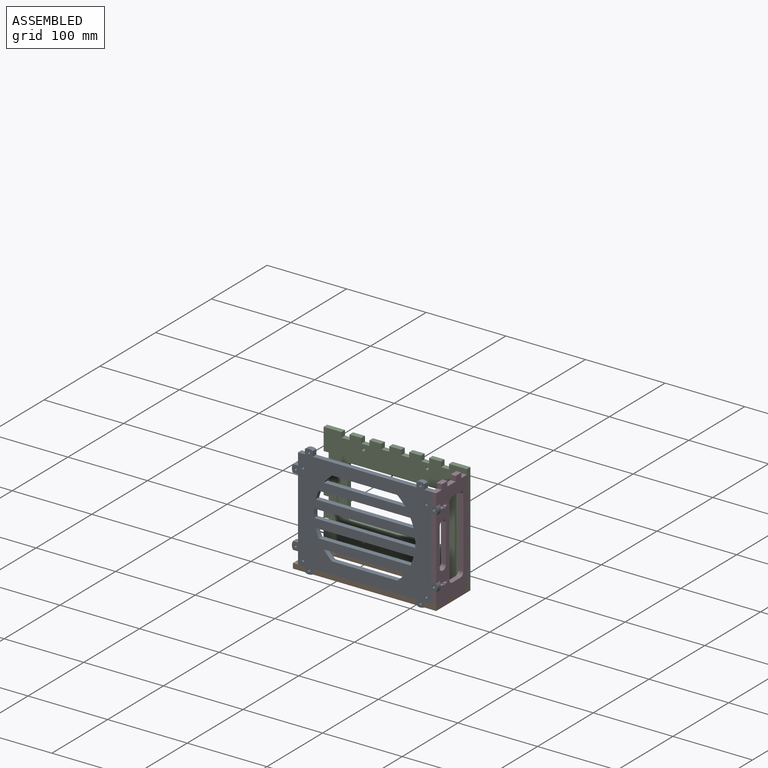
[diagram: assembled view]
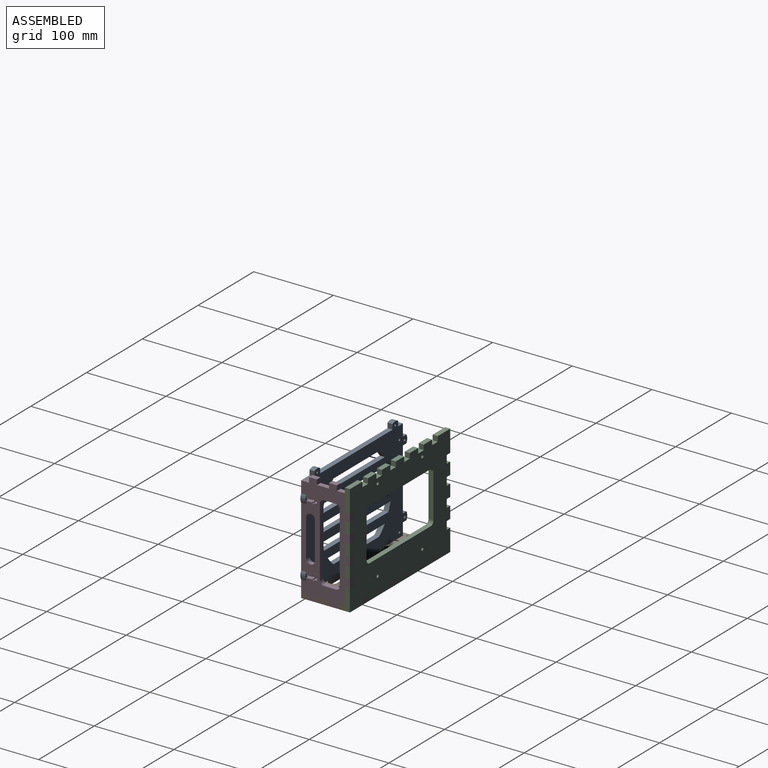
[diagram: assembled view, second angle]
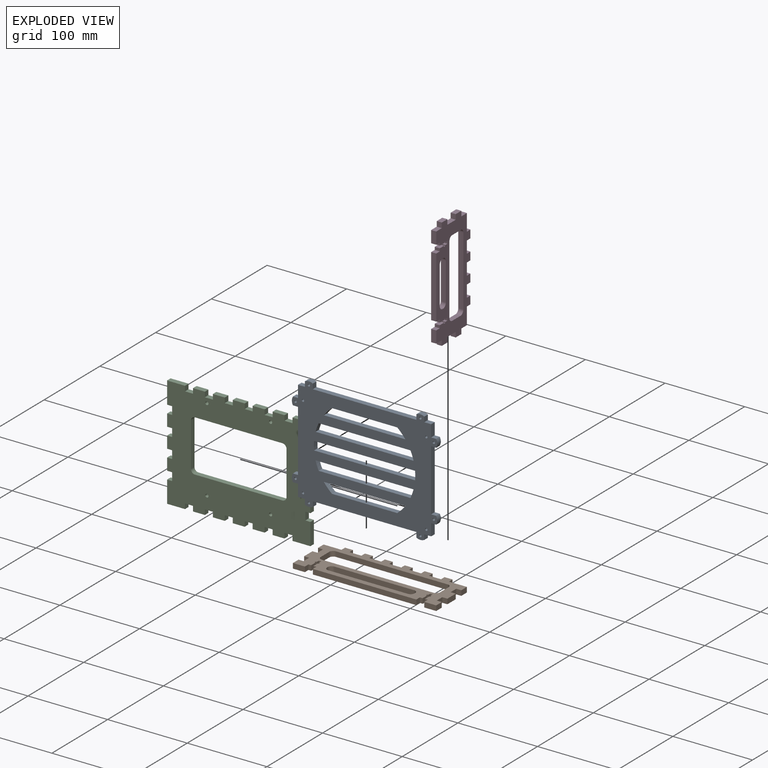
[diagram: exploded view]
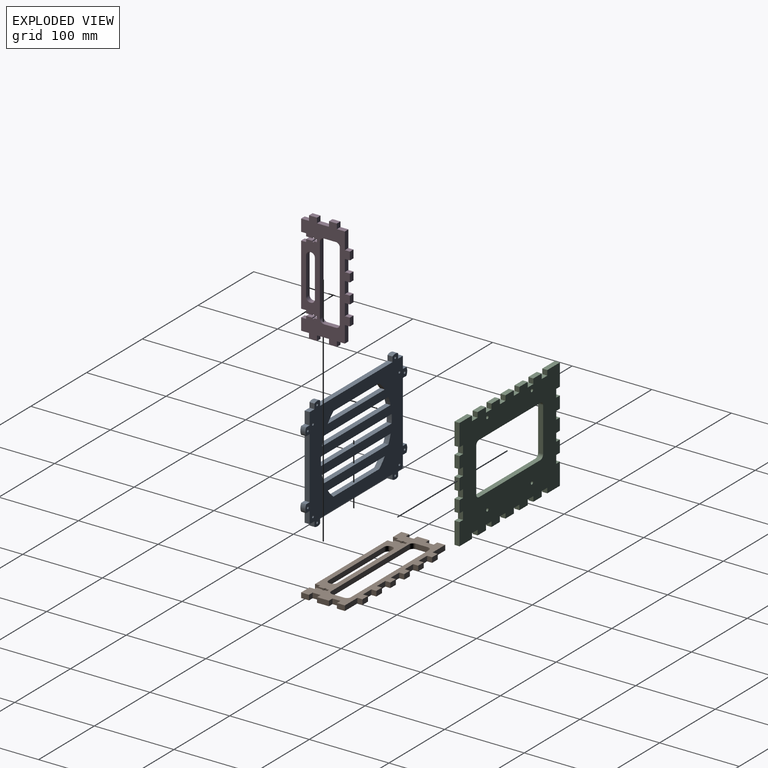
[diagram: exploded view, second angle]
ASSEMBLY  parts=4 mates=9
PART A: 70 faces, bbox 182.7x6.4x142.7 mm
  f0: cylinder r=63.65mm len=10.81mm, axis (0,1,0), area 94.3mm2, adj f1,f52,f68,f69
  f1: plane 82.09x6.35mm, normal (0,0,1), area 521.2mm2, adj f0,f2,f68,f69
  f2: cylinder r=63.65mm len=10.81mm, axis (0,1,0), area 94.3mm2, adj f1,f52,f68,f69
  f3: cylinder r=63.65mm len=10.81mm, axis (0,1,0), area 73.1mm2, adj f4,f53,f68,f69
  f4: plane 115.24x6.35mm, normal (0,0,1), area 731.8mm2, adj f3,f5,f68,f69
  f5: cylinder r=63.65mm len=10.81mm, axis (0,1,0), area 73.1mm2, adj f4,f53,f68,f69
  f6: plane 6.35x6.35mm, normal (0,0,1), area 40.3mm2, adj f7,f54,f68,f69
  f7: plane 15x6.35mm, normal (1,0,0), area 95.2mm2, adj f6,f8,f68,f69
  f8: plane 8.65x6.35mm, normal (0,0,1), area 54.9mm2, adj f7,f9,f68,f69
  f9: plane 6.35x6.35mm, normal (1,0,0), area 40.3mm2, adj f8,f10,f68,f69
  f10: cylinder r=10mm len=10mm, axis (0,1,0), area 66.5mm2, adj f9,f11,f68,f69
  f11: plane 6.35x6.35mm, normal (-1,0,0), area 40.3mm2, adj f10,f12,f68,f69
  f12: plane 130x6.35mm, normal (0,0,1), area 825.5mm2, adj f11,f13,f68,f69
  f13: plane 6.35x6.35mm, normal (1,0,0), area 40.3mm2, adj f12,f14,f68,f69
  f14: cylinder r=10mm len=10mm, axis (0,1,0), area 66.5mm2, adj f13,f15,f68,f69
  f15: plane 6.35x6.35mm, normal (-1,0,0), area 40.3mm2, adj f14,f16,f68,f69
  f16: plane 8.65x6.35mm, normal (0,0,1), area 54.9mm2, adj f15,f17,f68,f69
  f17: plane 15x6.35mm, normal (-1,0,0), area 95.2mm2, adj f16,f18,f68,f69
  f18: plane 6.35x6.35mm, normal (0,0,1), area 40.3mm2, adj f17,f19,f68,f69
  f19: cylinder r=10mm len=10mm, axis (0,1,0), area 66.5mm2, adj f18,f20,f68,f69
  f20: plane 6.35x6.35mm, normal (0,0,-1), area 40.3mm2, adj f19,f21,f68,f69
  f21: plane 77.3x6.35mm, normal (-1,0,0), area 490.9mm2, adj f20,f22,f68,f69
  f22: plane 6.35x6.35mm, normal (0,0,1), area 40.3mm2, adj f21,f23,f68,f69
  f23: cylinder r=10mm len=10mm, axis (0,1,0), area 66.5mm2, adj f22,f24,f68,f69
  f24: plane 6.35x6.35mm, normal (0,0,-1), area 40.3mm2, adj f23,f25,f68,f69
  f25: plane 15x6.35mm, normal (-1,0,0), area 95.2mm2, adj f24,f26,f68,f69
  f26: plane 8.65x6.35mm, normal (0,0,-1), area 54.9mm2, adj f25,f27,f68,f69
  f27: plane 6.35x6.35mm, normal (-1,0,0), area 40.3mm2, adj f26,f28,f68,f69
  f28: cylinder r=10mm len=10mm, axis (0,1,0), area 66.5mm2, adj f27,f29,f68,f69
  f29: plane 6.35x6.35mm, normal (1,0,0), area 40.3mm2, adj f28,f30,f68,f69
  f30: plane 130x6.35mm, normal (0,0,-1), area 825.5mm2, adj f29,f31,f68,f69
  f31: plane 6.35x6.35mm, normal (-1,0,0), area 40.3mm2, adj f30,f32,f68,f69
  f32: cylinder r=10mm len=10mm, axis (0,1,0), area 66.5mm2, adj f31,f33,f68,f69
  f33: plane 6.35x6.35mm, normal (1,0,0), area 40.3mm2, adj f32,f34,f68,f69
  f34: plane 8.65x6.35mm, normal (0,0,-1), area 54.9mm2, adj f33,f35,f68,f69
  f35: plane 15x6.35mm, normal (1,0,0), area 95.2mm2, adj f34,f36,f68,f69
  f36: plane 6.35x6.35mm, normal (0,0,-1), area 40.3mm2, adj f35,f37,f68,f69
  f37: cylinder r=10mm len=10mm, axis (0,1,0), area 66.5mm2, adj f36,f38,f68,f69
  f38: plane 6.35x6.35mm, normal (0,0,1), area 40.3mm2, adj f37,f39,f68,f69
  f39: plane 77.3x6.35mm, normal (1,0,0), area 490.9mm2, adj f38,f40,f68,f69
  f40: plane 6.35x6.35mm, normal (0,0,-1), area 40.3mm2, adj f39,f54,f68,f69
  f41: plane 102.36x6.35mm, normal (0,0,1), area 650mm2, adj f42,f55,f68,f69
  f42: cylinder r=63.65mm len=10.81mm, axis (0,1,0), area 94.3mm2, adj f41,f43,f68,f69
  f43: plane 82.09x6.35mm, normal (0,0,-1), area 521.2mm2, adj f42,f55,f68,f69
  f44: plane 123.09x6.35mm, normal (0,0,1), area 781.6mm2, adj f45,f56,f68,f69
  f45: cylinder r=63.65mm len=10.81mm, axis (0,1,0), area 73.1mm2, adj f44,f46,f68,f69
  f46: plane 115.24x6.35mm, normal (0,0,-1), area 731.8mm2, adj f45,f56,f68,f69
  f47: cylinder r=63.65mm len=10.81mm, axis (0,1,0), area 68.7mm2, adj f48,f66,f68,f69
  f48: plane 126.84x6.35mm, normal (0,0,-1), area 805.4mm2, adj f47,f49,f68,f69
  f49: cylinder r=63.65mm len=10.81mm, axis (0,1,0), area 68.7mm2, adj f48,f66,f68,f69
  f50: cylinder r=1.5mm len=6.35mm, axis (0,1,0), area 59.8mm2, adj f68,f69
  f51: cylinder r=1.5mm len=6.35mm, axis (0,1,0), area 59.8mm2, adj f68,f69
  f52: plane 102.36x6.35mm, normal (0,0,-1), area 650mm2, adj f0,f2,f68,f69
  f53: plane 123.09x6.35mm, normal (0,0,-1), area 781.6mm2, adj f3,f5,f68,f69
  f54: cylinder r=10mm len=10mm, axis (0,1,0), area 66.5mm2, adj f6,f40,f68,f69
  f55: cylinder r=63.65mm len=10.81mm, axis (0,1,0), area 94.3mm2, adj f41,f43,f68,f69
  f56: cylinder r=63.65mm len=10.81mm, axis (0,1,0), area 73.1mm2, adj f44,f46,f68,f69
  f57: cylinder r=1.5mm len=6.35mm, axis (0,1,0), area 59.8mm2, adj f68,f69
  f58: cylinder r=1.5mm len=6.35mm, axis (0,1,0), area 59.8mm2, adj f68,f69
  f59: cylinder r=1.5mm len=6.35mm, axis (0,1,0), area 59.8mm2, adj f68,f69
  f60: cylinder r=1.5mm len=6.35mm, axis (0,1,0), area 59.8mm2, adj f68,f69
  f61: cylinder r=1.5mm len=6.35mm, axis (0,1,0), area 59.8mm2, adj f68,f69
  f62: cylinder r=1.5mm len=6.35mm, axis (0,1,0), area 59.8mm2, adj f68,f69
  f63: cylinder r=1.5mm len=6.35mm, axis (0,1,0), area 59.8mm2, adj f68,f69
  f64: cylinder r=1.5mm len=6.35mm, axis (0,1,0), area 59.8mm2, adj f68,f69
  f65: cylinder r=1.5mm len=6.35mm, axis (0,1,0), area 59.8mm2, adj f68,f69
  f66: plane 126.84x6.35mm, normal (0,0,1), area 805.5mm2, adj f47,f49,f68,f69
  f67: cylinder r=1.5mm len=6.35mm, axis (0,1,0), area 59.8mm2, adj f68,f69
  f68: plane 182.68x142.68mm, normal (0,-1,0), area 15825.1mm2, adj f0,f1,f2,f3,f4,f5,f6,f7
  f69: plane 182.68x142.68mm, normal (0,1,0), area 15825.1mm2, adj f0,f1,f2,f3,f4,f5,f6,f7
PART B: 94 faces, bbox 180x6.4x61.4 mm
  f0: plane 22.5x6.35mm, normal (0,0,1), area 142.9mm2, adj f1,f91,f92,f93
  f1: plane 6.35x6.35mm, normal (1,0,0), area 40.3mm2, adj f0,f2,f92,f93
  f2: plane 10x6.35mm, normal (0,0,1), area 63.5mm2, adj f1,f3,f92,f93
  f3: plane 6.35x6.35mm, normal (-1,0,0), area 40.3mm2, adj f2,f4,f92,f93
  f4: plane 15x6.35mm, normal (0,0,1), area 95.2mm2, adj f3,f5,f92,f93
  f5: plane 6.35x6.35mm, normal (1,0,0), area 40.3mm2, adj f4,f6,f92,f93
  f6: plane 10x6.35mm, normal (0,0,1), area 63.5mm2, adj f5,f7,f92,f93
  f7: plane 6.35x6.35mm, normal (-1,0,0), area 40.3mm2, adj f6,f8,f92,f93
  f8: plane 15x6.35mm, normal (0,0,1), area 95.2mm2, adj f7,f9,f92,f93
  f9: plane 6.35x6.35mm, normal (1,0,0), area 40.3mm2, adj f8,f10,f92,f93
  f10: plane 10x6.35mm, normal (0,0,1), area 63.5mm2, adj f9,f11,f92,f93
  f11: plane 6.35x6.35mm, normal (-1,0,0), area 40.3mm2, adj f10,f12,f92,f93
  f12: plane 15x6.35mm, normal (0,0,1), area 95.2mm2, adj f11,f13,f92,f93
  f13: plane 6.35x6.35mm, normal (1,0,0), area 40.3mm2, adj f12,f14,f92,f93
  f14: plane 10x6.35mm, normal (0,0,1), area 63.5mm2, adj f13,f15,f92,f93
  f15: plane 6.35x6.35mm, normal (-1,0,0), area 40.3mm2, adj f14,f16,f92,f93
  f16: plane 15x6.35mm, normal (0,0,1), area 95.2mm2, adj f15,f17,f92,f93
  f17: plane 6.35x6.35mm, normal (1,0,0), area 40.3mm2, adj f16,f18,f92,f93
  f18: plane 10x6.35mm, normal (0,0,1), area 63.5mm2, adj f17,f19,f92,f93
  f19: plane 6.35x6.35mm, normal (-1,0,0), area 40.3mm2, adj f18,f20,f92,f93
  f20: plane 15x6.35mm, normal (0,0,1), area 95.2mm2, adj f19,f21,f92,f93
  f21: plane 6.35x6.35mm, normal (1,0,0), area 40.3mm2, adj f20,f22,f92,f93
  f22: plane 10x6.35mm, normal (0,0,1), area 63.5mm2, adj f21,f23,f92,f93
  f23: plane 6.35x6.35mm, normal (-1,0,0), area 40.3mm2, adj f22,f24,f92,f93
  f24: plane 22.5x6.35mm, normal (0,0,1), area 142.9mm2, adj f23,f25,f92,f93
  f25: plane 10x6.35mm, normal (-1,0,0), area 63.5mm2, adj f24,f26,f92,f93
  f26: plane 6.35x6.35mm, normal (0,0,-1), area 40.3mm2, adj f25,f27,f92,f93
  f27: plane 10x6.35mm, normal (-1,0,0), area 63.5mm2, adj f26,f28,f92,f93
  f28: plane 6.35x6.35mm, normal (0,0,1), area 40.3mm2, adj f27,f29,f92,f93
  f29: plane 15x6.35mm, normal (-1,0,0), area 95.3mm2, adj f28,f30,f92,f93
  f30: plane 6.35x6.35mm, normal (0,0,-1), area 40.3mm2, adj f29,f31,f92,f93
  f31: plane 10x6.35mm, normal (-1,0,0), area 63.5mm2, adj f30,f32,f92,f93
  f32: plane 6.35x6.35mm, normal (0,0,1), area 40.3mm2, adj f31,f33,f92,f93
  f33: plane 10x6.35mm, normal (-1,0,0), area 63.5mm2, adj f32,f34,f92,f93
  f34: plane 15x6.35mm, normal (0,0,-1), area 95.2mm2, adj f33,f35,f92,f93
  f35: plane 6.35x6.35mm, normal (1,0,0), area 40.3mm2, adj f34,f36,f92,f93
  f36: plane 6.35x3.5mm, normal (0,0,-1), area 22.2mm2, adj f35,f37,f92,f93
  f37: plane 7.65x6.35mm, normal (1,0,0), area 48.6mm2, adj f36,f38,f92,f93
  f38: plane 6.35x1.2mm, normal (0,0,1), area 7.6mm2, adj f37,f39,f92,f93
  f39: plane 6.35x2.27mm, normal (1,0,0), area 14.4mm2, adj f38,f40,f92,f93
  f40: plane 6.35x1.2mm, normal (0,0,-1), area 7.6mm2, adj f39,f41,f92,f93
  f41: plane 6.35x3.73mm, normal (1,0,0), area 23.7mm2, adj f40,f42,f92,f93
  f42: plane 6.35x3mm, normal (0,0,-1), area 19mm2, adj f41,f43,f92,f93
  f43: plane 6.35x3.73mm, normal (-1,0,0), area 23.7mm2, adj f42,f44,f92,f93
  f44: plane 6.35x1.2mm, normal (0,0,-1), area 7.6mm2, adj f43,f45,f92,f93
  f45: plane 6.35x2.27mm, normal (-1,0,0), area 14.4mm2, adj f44,f46,f92,f93
  f46: plane 6.35x1.2mm, normal (0,0,1), area 7.6mm2, adj f45,f47,f92,f93
  f47: plane 7.65x6.35mm, normal (-1,0,0), area 48.6mm2, adj f46,f48,f92,f93
  f48: plane 6.35x3.5mm, normal (0,0,-1), area 22.2mm2, adj f47,f49,f92,f93
  f49: plane 6.35x6.35mm, normal (-1,0,0), area 40.3mm2, adj f48,f50,f92,f93
  f50: plane 130x6.35mm, normal (0,0,-1), area 825.5mm2, adj f49,f51,f92,f93
  f51: plane 6.35x6.35mm, normal (1,0,0), area 40.3mm2, adj f50,f52,f92,f93
  f52: plane 6.35x3.5mm, normal (0,0,-1), area 22.2mm2, adj f51,f53,f92,f93
  f53: plane 7.65x6.35mm, normal (1,0,0), area 48.6mm2, adj f52,f54,f92,f93
  f54: plane 6.35x1.2mm, normal (0,0,1), area 7.6mm2, adj f53,f55,f92,f93
  f55: plane 6.35x2.27mm, normal (1,0,0), area 14.4mm2, adj f54,f56,f92,f93
  f56: plane 6.35x1.2mm, normal (0,0,-1), area 7.6mm2, adj f55,f57,f92,f93
  f57: plane 6.35x3.73mm, normal (1,0,0), area 23.7mm2, adj f56,f58,f92,f93
  f58: plane 6.35x3mm, normal (0,0,-1), area 19.1mm2, adj f57,f59,f92,f93
  f59: plane 6.35x3.73mm, normal (-1,0,0), area 23.7mm2, adj f58,f60,f92,f93
  f60: plane 6.35x1.2mm, normal (0,0,-1), area 7.6mm2, adj f59,f61,f92,f93
  f61: plane 6.35x2.27mm, normal (-1,0,0), area 14.4mm2, adj f60,f62,f92,f93
  f62: plane 6.35x1.2mm, normal (0,0,1), area 7.6mm2, adj f61,f63,f92,f93
  f63: plane 7.65x6.35mm, normal (-1,0,0), area 48.6mm2, adj f62,f64,f92,f93
  f64: plane 6.35x3.5mm, normal (0,0,-1), area 22.2mm2, adj f63,f65,f92,f93
  f65: plane 6.35x6.35mm, normal (-1,0,0), area 40.3mm2, adj f64,f66,f92,f93
  f66: plane 15x6.35mm, normal (0,0,-1), area 95.2mm2, adj f65,f67,f92,f93
  f67: plane 10x6.35mm, normal (1,0,0), area 63.5mm2, adj f66,f68,f92,f93
  f68: plane 6.35x6.35mm, normal (0,0,1), area 40.3mm2, adj f67,f69,f92,f93
  f69: plane 10x6.35mm, normal (1,0,0), area 63.5mm2, adj f68,f70,f92,f93
  f70: plane 6.35x6.35mm, normal (0,0,-1), area 40.3mm2, adj f69,f71,f92,f93
  f71: plane 15x6.35mm, normal (1,0,0), area 95.3mm2, adj f70,f72,f92,f93
  f72: plane 6.35x6.35mm, normal (0,0,1), area 40.3mm2, adj f71,f73,f92,f93
  f73: plane 10x6.35mm, normal (1,0,0), area 63.5mm2, adj f72,f74,f92,f93
  f74: plane 6.35x6.35mm, normal (0,0,-1), area 40.3mm2, adj f73,f91,f92,f93
  f75: plane 140x6.35mm, normal (0,0,1), area 889mm2, adj f76,f89,f92,f93
  f76: cylinder r=5mm len=6.35mm, axis (0,1,0), area 49.9mm2, adj f75,f77,f92,f93
  f77: plane 15x6.35mm, normal (1,0,0), area 95.3mm2, adj f76,f78,f92,f93
  f78: cylinder r=5mm len=6.35mm, axis (0,1,0), area 49.9mm2, adj f77,f79,f92,f93
  f79: plane 140x6.35mm, normal (0,0,-1), area 889mm2, adj f78,f80,f92,f93
  f80: cylinder r=5mm len=6.35mm, axis (0,1,0), area 49.9mm2, adj f79,f81,f92,f93
  f81: plane 15x6.35mm, normal (-1,0,0), area 95.3mm2, adj f80,f89,f92,f93
  f82: plane 100x6.35mm, normal (0,0,1), area 635mm2, adj f83,f90,f92,f93
  f83: cylinder r=5mm len=6.35mm, axis (0,1,0), area 49.9mm2, adj f82,f84,f92,f93
  f84: plane 6.35x0.95mm, normal (1,0,0), area 6mm2, adj f83,f85,f92,f93
  f85: cylinder r=5mm len=6.35mm, axis (0,1,0), area 49.9mm2, adj f84,f86,f92,f93
  f86: plane 100x6.35mm, normal (0,0,-1), area 635mm2, adj f85,f87,f92,f93
  f87: cylinder r=5mm len=6.35mm, axis (0,1,0), area 49.9mm2, adj f86,f88,f92,f93
  f88: plane 6.35x0.95mm, normal (-1,0,0), area 6mm2, adj f87,f90,f92,f93
  f89: cylinder r=5mm len=6.35mm, axis (0,1,0), area 49.9mm2, adj f75,f81,f92,f93
  f90: cylinder r=5mm len=6.35mm, axis (0,1,0), area 49.9mm2, adj f82,f88,f92,f93
  f91: plane 10x6.35mm, normal (1,0,0), area 63.5mm2, adj f0,f74,f92,f93
  f92: plane 180x61.35mm, normal (0,-1,0), area 4895.6mm2, adj f0,f1,f2,f3,f4,f5,f6,f7
  f93: plane 180x61.35mm, normal (0,1,0), area 4895.6mm2, adj f0,f1,f2,f3,f4,f5,f6,f7
PART C: 98 faces, bbox 180x6.4x140 mm
  f0: plane 110x6.35mm, normal (0,0,1), area 698.5mm2, adj f1,f90,f92,f93
  f1: cylinder r=5mm len=6.35mm, axis (0,1,0), area 49.9mm2, adj f0,f2,f92,f93
  f2: plane 55x6.35mm, normal (1,0,0), area 349.2mm2, adj f1,f3,f92,f93
  f3: cylinder r=5mm len=6.35mm, axis (0,1,0), area 49.9mm2, adj f2,f4,f92,f93
  f4: plane 110x6.35mm, normal (0,0,-1), area 698.5mm2, adj f3,f5,f92,f93
  f5: cylinder r=5mm len=6.35mm, axis (0,1,0), area 49.9mm2, adj f4,f6,f92,f93
  f6: plane 55x6.35mm, normal (-1,0,0), area 349.2mm2, adj f5,f90,f92,f93
  f7: plane 15x6.35mm, normal (-1,0,0), area 95.2mm2, adj f8,f91,f92,f93
  f8: plane 6.35x6.35mm, normal (0,0,-1), area 40.3mm2, adj f7,f9,f92,f93
  f9: plane 10x6.35mm, normal (-1,0,0), area 63.5mm2, adj f8,f10,f92,f93
  f10: plane 6.35x6.35mm, normal (0,0,1), area 40.3mm2, adj f9,f11,f92,f93
  f11: plane 27.5x6.35mm, normal (-1,0,0), area 174.6mm2, adj f10,f12,f92,f93
  f12: plane 22.5x6.35mm, normal (0,0,-1), area 142.9mm2, adj f11,f13,f92,f93
  f13: plane 6.35x6.35mm, normal (1,0,0), area 40.3mm2, adj f12,f14,f92,f93
  f14: plane 10x6.35mm, normal (0,0,-1), area 63.5mm2, adj f13,f15,f92,f93
  f15: plane 6.35x6.35mm, normal (-1,0,0), area 40.3mm2, adj f14,f16,f92,f93
  f16: plane 15x6.35mm, normal (0,0,-1), area 95.2mm2, adj f15,f17,f92,f93
  f17: plane 6.35x6.35mm, normal (1,0,0), area 40.3mm2, adj f16,f18,f92,f93
  f18: plane 10x6.35mm, normal (0,0,-1), area 63.5mm2, adj f17,f19,f92,f93
  f19: plane 6.35x6.35mm, normal (-1,0,0), area 40.3mm2, adj f18,f20,f92,f93
  f20: plane 15x6.35mm, normal (0,0,-1), area 95.2mm2, adj f19,f21,f92,f93
  f21: plane 6.35x6.35mm, normal (1,0,0), area 40.3mm2, adj f20,f22,f92,f93
  f22: plane 10x6.35mm, normal (0,0,-1), area 63.5mm2, adj f21,f23,f92,f93
  f23: plane 6.35x6.35mm, normal (-1,0,0), area 40.3mm2, adj f22,f24,f92,f93
  f24: plane 15x6.35mm, normal (0,0,-1), area 95.2mm2, adj f23,f25,f92,f93
  f25: plane 6.35x6.35mm, normal (1,0,0), area 40.3mm2, adj f24,f26,f92,f93
  f26: plane 10x6.35mm, normal (0,0,-1), area 63.5mm2, adj f25,f27,f92,f93
  f27: plane 6.35x6.35mm, normal (-1,0,0), area 40.3mm2, adj f26,f28,f92,f93
  f28: plane 15x6.35mm, normal (0,0,-1), area 95.2mm2, adj f27,f29,f92,f93
  f29: plane 6.35x6.35mm, normal (1,0,0), area 40.3mm2, adj f28,f30,f92,f93
  f30: plane 10x6.35mm, normal (0,0,-1), area 63.5mm2, adj f29,f31,f92,f93
  f31: plane 6.35x6.35mm, normal (-1,0,0), area 40.3mm2, adj f30,f32,f92,f93
  f32: plane 15x6.35mm, normal (0,0,-1), area 95.2mm2, adj f31,f33,f92,f93
  f33: plane 6.35x6.35mm, normal (1,0,0), area 40.3mm2, adj f32,f34,f92,f93
  f34: plane 10x6.35mm, normal (0,0,-1), area 63.5mm2, adj f33,f35,f92,f93
  f35: plane 6.35x6.35mm, normal (-1,0,0), area 40.3mm2, adj f34,f36,f92,f93
  f36: plane 22.5x6.35mm, normal (0,0,-1), area 142.9mm2, adj f35,f37,f92,f93
  f37: plane 27.5x6.35mm, normal (1,0,0), area 174.6mm2, adj f36,f38,f92,f93
  f38: plane 6.35x6.35mm, normal (0,0,1), area 40.3mm2, adj f37,f39,f92,f93
  f39: plane 10x6.35mm, normal (1,0,0), area 63.5mm2, adj f38,f40,f92,f93
  f40: plane 6.35x6.35mm, normal (0,0,-1), area 40.3mm2, adj f39,f41,f92,f93
  f41: plane 15x6.35mm, normal (1,0,0), area 95.2mm2, adj f40,f42,f92,f93
  f42: plane 6.35x6.35mm, normal (0,0,1), area 40.3mm2, adj f41,f43,f92,f93
  f43: plane 10x6.35mm, normal (1,0,0), area 63.5mm2, adj f42,f44,f92,f93
  f44: plane 6.35x6.35mm, normal (0,0,-1), area 40.3mm2, adj f43,f45,f92,f93
  f45: plane 15x6.35mm, normal (1,0,0), area 95.2mm2, adj f44,f46,f92,f93
  f46: plane 6.35x6.35mm, normal (0,0,1), area 40.3mm2, adj f45,f47,f92,f93
  f47: plane 10x6.35mm, normal (1,0,0), area 63.5mm2, adj f46,f48,f92,f93
  f48: plane 6.35x6.35mm, normal (0,0,-1), area 40.3mm2, adj f47,f49,f92,f93
  f49: plane 15x6.35mm, normal (1,0,0), area 95.2mm2, adj f48,f50,f92,f93
  f50: plane 6.35x6.35mm, normal (0,0,1), area 40.3mm2, adj f49,f51,f92,f93
  f51: plane 10x6.35mm, normal (1,0,0), area 63.5mm2, adj f50,f52,f92,f93
  f52: plane 6.35x6.35mm, normal (0,0,-1), area 40.3mm2, adj f51,f53,f92,f93
  f53: plane 27.5x6.35mm, normal (1,0,0), area 174.6mm2, adj f52,f54,f92,f93
  f54: plane 22.5x6.35mm, normal (0,0,1), area 142.9mm2, adj f53,f55,f92,f93
  f55: plane 6.35x6.35mm, normal (-1,0,0), area 40.3mm2, adj f54,f56,f92,f93
  f56: plane 10x6.35mm, normal (0,0,1), area 63.5mm2, adj f55,f57,f92,f93
  f57: plane 6.35x6.35mm, normal (1,0,0), area 40.3mm2, adj f56,f58,f92,f93
  f58: plane 15x6.35mm, normal (0,0,1), area 95.2mm2, adj f57,f59,f92,f93
  f59: plane 6.35x6.35mm, normal (-1,0,0), area 40.3mm2, adj f58,f60,f92,f93
  f60: plane 10x6.35mm, normal (0,0,1), area 63.5mm2, adj f59,f61,f92,f93
  f61: plane 6.35x6.35mm, normal (1,0,0), area 40.3mm2, adj f60,f62,f92,f93
  f62: plane 15x6.35mm, normal (0,0,1), area 95.2mm2, adj f61,f63,f92,f93
  f63: plane 6.35x6.35mm, normal (-1,0,0), area 40.3mm2, adj f62,f64,f92,f93
  f64: plane 10x6.35mm, normal (0,0,1), area 63.5mm2, adj f63,f65,f92,f93
  f65: plane 6.35x6.35mm, normal (1,0,0), area 40.3mm2, adj f64,f66,f92,f93
  f66: plane 15x6.35mm, normal (0,0,1), area 95.2mm2, adj f65,f67,f92,f93
  f67: plane 6.35x6.35mm, normal (-1,0,0), area 40.3mm2, adj f66,f68,f92,f93
  f68: plane 10x6.35mm, normal (0,0,1), area 63.5mm2, adj f67,f69,f92,f93
  f69: plane 6.35x6.35mm, normal (1,0,0), area 40.3mm2, adj f68,f70,f92,f93
  f70: plane 15x6.35mm, normal (0,0,1), area 95.2mm2, adj f69,f71,f92,f93
  f71: plane 6.35x6.35mm, normal (-1,0,0), area 40.3mm2, adj f70,f72,f92,f93
  f72: plane 10x6.35mm, normal (0,0,1), area 63.5mm2, adj f71,f73,f92,f93
  f73: plane 6.35x6.35mm, normal (1,0,0), area 40.3mm2, adj f72,f74,f92,f93
  f74: plane 15x6.35mm, normal (0,0,1), area 95.2mm2, adj f73,f75,f92,f93
  f75: plane 6.35x6.35mm, normal (-1,0,0), area 40.3mm2, adj f74,f76,f92,f93
  f76: plane 10x6.35mm, normal (0,0,1), area 63.5mm2, adj f75,f77,f92,f93
  f77: plane 6.35x6.35mm, normal (1,0,0), area 40.3mm2, adj f76,f78,f92,f93
  f78: plane 22.5x6.35mm, normal (0,0,1), area 142.9mm2, adj f77,f79,f92,f93
  f79: plane 27.5x6.35mm, normal (-1,0,0), area 174.6mm2, adj f78,f80,f92,f93
  f80: plane 6.35x6.35mm, normal (0,0,-1), area 40.3mm2, adj f79,f81,f92,f93
  f81: plane 10x6.35mm, normal (-1,0,0), area 63.5mm2, adj f80,f82,f92,f93
  f82: plane 6.35x6.35mm, normal (0,0,1), area 40.3mm2, adj f81,f83,f92,f93
  f83: plane 15x6.35mm, normal (-1,0,0), area 95.2mm2, adj f82,f84,f92,f93
  f84: plane 6.35x6.35mm, normal (0,0,-1), area 40.3mm2, adj f83,f85,f92,f93
  f85: plane 10x6.35mm, normal (-1,0,0), area 63.5mm2, adj f84,f86,f92,f93
  f86: plane 6.35x6.35mm, normal (0,0,1), area 40.3mm2, adj f85,f87,f92,f93
  f87: plane 15x6.35mm, normal (-1,0,0), area 95.2mm2, adj f86,f88,f92,f93
  f88: plane 6.35x6.35mm, normal (0,0,-1), area 40.3mm2, adj f87,f89,f92,f93
  f89: plane 10x6.35mm, normal (-1,0,0), area 63.5mm2, adj f88,f91,f92,f93
  f90: cylinder r=5mm len=6.35mm, axis (0,1,0), area 49.9mm2, adj f0,f6,f92,f93
  f91: plane 6.35x6.35mm, normal (0,0,1), area 40.3mm2, adj f7,f89,f92,f93
  f92: plane 180x140mm, normal (0,-1,0), area 16101.2mm2, adj f0,f1,f2,f3,f4,f5,f6,f7
  f93: plane 180x140mm, normal (0,1,0), area 16101.2mm2, adj f0,f1,f2,f3,f4,f5,f6,f7
  f94: cylinder r=2mm len=6.35mm, axis (0,1,0), area 79.8mm2, adj f92,f93
  f95: cylinder r=2mm len=6.35mm, axis (0,1,0), area 79.8mm2, adj f92,f93
  f96: cylinder r=2mm len=6.35mm, axis (0,1,0), area 79.8mm2, adj f92,f93
  f97: cylinder r=2mm len=6.35mm, axis (0,1,0), area 79.8mm2, adj f92,f93
PART D: 86 faces, bbox 140x6.4x61.4 mm
  f0: plane 6.35x6.35mm, normal (-1,0,0), area 40.3mm2, adj f1,f83,f84,f85
  f1: plane 15x6.35mm, normal (0,0,-1), area 95.2mm2, adj f0,f2,f84,f85
  f2: plane 10x6.35mm, normal (1,0,0), area 63.5mm2, adj f1,f3,f84,f85
  f3: plane 6.35x6.35mm, normal (0,0,-1), area 40.3mm2, adj f2,f4,f84,f85
  f4: plane 10x6.35mm, normal (1,0,0), area 63.5mm2, adj f3,f5,f84,f85
  f5: plane 6.35x6.35mm, normal (0,0,1), area 40.3mm2, adj f4,f6,f84,f85
  f6: plane 15x6.35mm, normal (1,0,0), area 95.3mm2, adj f5,f7,f84,f85
  f7: plane 6.35x6.35mm, normal (0,0,-1), area 40.3mm2, adj f6,f8,f84,f85
  f8: plane 10x6.35mm, normal (1,0,0), area 63.5mm2, adj f7,f9,f84,f85
  f9: plane 6.35x6.35mm, normal (0,0,1), area 40.3mm2, adj f8,f10,f84,f85
  f10: plane 10x6.35mm, normal (1,0,0), area 63.5mm2, adj f9,f11,f84,f85
  f11: plane 21.15x6.35mm, normal (0,0,1), area 134.3mm2, adj f10,f12,f84,f85
  f12: plane 6.35x6.35mm, normal (1,0,0), area 40.3mm2, adj f11,f13,f84,f85
  f13: plane 10x6.35mm, normal (0,0,1), area 63.5mm2, adj f12,f14,f84,f85
  f14: plane 6.35x6.35mm, normal (-1,0,0), area 40.3mm2, adj f13,f15,f84,f85
  f15: plane 15x6.35mm, normal (0,0,1), area 95.2mm2, adj f14,f16,f84,f85
  f16: plane 6.35x6.35mm, normal (1,0,0), area 40.3mm2, adj f15,f17,f84,f85
  f17: plane 10x6.35mm, normal (0,0,1), area 63.5mm2, adj f16,f18,f84,f85
  f18: plane 6.35x6.35mm, normal (-1,0,0), area 40.3mm2, adj f17,f19,f84,f85
  f19: plane 15x6.35mm, normal (0,0,1), area 95.3mm2, adj f18,f20,f84,f85
  f20: plane 6.35x6.35mm, normal (1,0,0), area 40.3mm2, adj f19,f21,f84,f85
  f21: plane 10x6.35mm, normal (0,0,1), area 63.5mm2, adj f20,f22,f84,f85
  f22: plane 6.35x6.35mm, normal (-1,0,0), area 40.3mm2, adj f21,f23,f84,f85
  f23: plane 15x6.35mm, normal (0,0,1), area 95.2mm2, adj f22,f24,f84,f85
  f24: plane 6.35x6.35mm, normal (1,0,0), area 40.3mm2, adj f23,f25,f84,f85
  f25: plane 10x6.35mm, normal (0,0,1), area 63.5mm2, adj f24,f26,f84,f85
  f26: plane 6.35x6.35mm, normal (-1,0,0), area 40.3mm2, adj f25,f27,f84,f85
  f27: plane 21.15x6.35mm, normal (0,0,1), area 134.3mm2, adj f26,f28,f84,f85
  f28: plane 10x6.35mm, normal (-1,0,0), area 63.5mm2, adj f27,f29,f84,f85
  f29: plane 6.35x6.35mm, normal (0,0,1), area 40.3mm2, adj f28,f30,f84,f85
  f30: plane 10x6.35mm, normal (-1,0,0), area 63.5mm2, adj f29,f31,f84,f85
  f31: plane 6.35x6.35mm, normal (0,0,-1), area 40.3mm2, adj f30,f32,f84,f85
  f32: plane 15x6.35mm, normal (-1,0,0), area 95.3mm2, adj f31,f33,f84,f85
  f33: plane 6.35x6.35mm, normal (0,0,1), area 40.3mm2, adj f32,f34,f84,f85
  f34: plane 10x6.35mm, normal (-1,0,0), area 63.5mm2, adj f33,f35,f84,f85
  f35: plane 6.35x6.35mm, normal (0,0,-1), area 40.3mm2, adj f34,f36,f84,f85
  f36: plane 10x6.35mm, normal (-1,0,0), area 63.5mm2, adj f35,f37,f84,f85
  f37: plane 15x6.35mm, normal (0,0,-1), area 95.2mm2, adj f36,f38,f84,f85
  f38: plane 6.35x6.35mm, normal (1,0,0), area 40.3mm2, adj f37,f39,f84,f85
  f39: plane 6.35x3.5mm, normal (0,0,-1), area 22.2mm2, adj f38,f40,f84,f85
  f40: plane 7.65x6.35mm, normal (1,0,0), area 48.6mm2, adj f39,f41,f84,f85
  f41: plane 6.35x1.2mm, normal (0,0,1), area 7.6mm2, adj f40,f42,f84,f85
  f42: plane 6.35x2.27mm, normal (1,0,0), area 14.4mm2, adj f41,f43,f84,f85
  f43: plane 6.35x1.2mm, normal (0,0,-1), area 7.6mm2, adj f42,f44,f84,f85
  f44: plane 6.35x3.73mm, normal (1,0,0), area 23.7mm2, adj f43,f45,f84,f85
  f45: plane 6.35x3mm, normal (0,0,-1), area 19mm2, adj f44,f46,f84,f85
  f46: plane 6.35x3.73mm, normal (-1,0,0), area 23.7mm2, adj f45,f47,f84,f85
  f47: plane 6.35x1.2mm, normal (0,0,-1), area 7.6mm2, adj f46,f48,f84,f85
  f48: plane 6.35x2.27mm, normal (-1,0,0), area 14.4mm2, adj f47,f49,f84,f85
  f49: plane 6.35x1.2mm, normal (0,0,1), area 7.6mm2, adj f48,f50,f84,f85
  f50: plane 7.65x6.35mm, normal (-1,0,0), area 48.6mm2, adj f49,f51,f84,f85
  f51: plane 6.35x3.5mm, normal (0,0,-1), area 22.2mm2, adj f50,f52,f84,f85
  f52: plane 6.35x6.35mm, normal (-1,0,0), area 40.3mm2, adj f51,f53,f84,f85
  f53: plane 77.3x6.35mm, normal (0,0,-1), area 490.9mm2, adj f52,f54,f84,f85
  f54: plane 6.35x6.35mm, normal (1,0,0), area 40.3mm2, adj f53,f55,f84,f85
  f55: plane 6.35x3.5mm, normal (0,0,-1), area 22.2mm2, adj f54,f56,f84,f85
  f56: plane 7.65x6.35mm, normal (1,0,0), area 48.6mm2, adj f55,f57,f84,f85
  f57: plane 6.35x1.2mm, normal (0,0,1), area 7.6mm2, adj f56,f58,f84,f85
  f58: plane 6.35x2.27mm, normal (1,0,0), area 14.4mm2, adj f57,f59,f84,f85
  f59: plane 6.35x1.2mm, normal (0,0,-1), area 7.6mm2, adj f58,f60,f84,f85
  f60: plane 6.35x3.73mm, normal (1,0,0), area 23.7mm2, adj f59,f61,f84,f85
  f61: plane 6.35x3mm, normal (0,0,-1), area 19mm2, adj f60,f62,f84,f85
  f62: plane 6.35x3.73mm, normal (-1,0,0), area 23.7mm2, adj f61,f63,f84,f85
  f63: plane 6.35x1.2mm, normal (0,0,-1), area 7.6mm2, adj f62,f64,f84,f85
  f64: plane 6.35x2.27mm, normal (-1,0,0), area 14.4mm2, adj f63,f65,f84,f85
  f65: plane 6.35x1.2mm, normal (0,0,1), area 7.6mm2, adj f64,f66,f84,f85
  f66: plane 7.65x6.35mm, normal (-1,0,0), area 48.6mm2, adj f65,f83,f84,f85
  f67: plane 87.3x6.35mm, normal (0,0,1), area 554.4mm2, adj f68,f81,f84,f85
  f68: cylinder r=5mm len=6.35mm, axis (0,1,0), area 49.9mm2, adj f67,f69,f84,f85
  f69: plane 15x6.35mm, normal (1,0,0), area 95.3mm2, adj f68,f70,f84,f85
  f70: cylinder r=5mm len=6.35mm, axis (0,1,0), area 49.9mm2, adj f69,f71,f84,f85
  f71: plane 87.3x6.35mm, normal (0,0,-1), area 554.4mm2, adj f70,f72,f84,f85
  f72: cylinder r=5mm len=6.35mm, axis (0,1,0), area 49.9mm2, adj f71,f73,f84,f85
  f73: plane 15x6.35mm, normal (-1,0,0), area 95.3mm2, adj f72,f81,f84,f85
  f74: plane 47.3x6.35mm, normal (0,0,1), area 300.4mm2, adj f75,f82,f84,f85
  f75: cylinder r=5mm len=6.35mm, axis (0,1,0), area 49.9mm2, adj f74,f76,f84,f85
  f76: plane 6.35x0.95mm, normal (1,0,0), area 6mm2, adj f75,f77,f84,f85
  f77: cylinder r=5mm len=6.35mm, axis (0,1,0), area 49.9mm2, adj f76,f78,f84,f85
  f78: plane 47.3x6.35mm, normal (0,0,-1), area 300.4mm2, adj f77,f79,f84,f85
  f79: cylinder r=5mm len=6.35mm, axis (0,1,0), area 49.9mm2, adj f78,f80,f84,f85
  f80: plane 6.35x0.95mm, normal (-1,0,0), area 6mm2, adj f79,f82,f84,f85
  f81: cylinder r=5mm len=6.35mm, axis (0,1,0), area 49.9mm2, adj f67,f73,f84,f85
  f82: cylinder r=5mm len=6.35mm, axis (0,1,0), area 49.9mm2, adj f74,f80,f84,f85
  f83: plane 6.35x3.5mm, normal (0,0,-1), area 22.2mm2, adj f0,f66,f84,f85
  f84: plane 140x61.35mm, normal (0,-1,0), area 4272.7mm2, adj f0,f1,f2,f3,f4,f5,f6,f7
  f85: plane 140x61.35mm, normal (0,1,0), area 4272.7mm2, adj f0,f1,f2,f3,f4,f5,f6,f7
PLACE A rot(axis=(1,0,0),180deg) t=(-142.15,1.73,54.72)mm
PLACE B rot(axis=(-1,0,0),90deg) t=(-148.5,1.73,-78.93)mm
PLACE C rot(axis=(-0.17,0.38,-0.91),0deg) t=(-148.5,63.08,-78.93)mm
PLACE D rot(axis=(-0.58,0.58,0.58),120deg) t=(25.15,1.73,54.72)mm
MATE planar B.f0 <-> C.f92  axis (0,1,0) through (20.25,56.73,-75.75)mm
MATE planar D.f2 <-> B.f92  axis (0,0,-1) through (28.33,6.73,-72.58)mm
MATE planar D.f38 <-> A.f36  axis (0,0,-1) through (28.33,4.9,39.72)mm
MATE planar B.f1 <-> C.f35  axis (1,0,0) through (9,59.9,-75.75)mm
MATE planar A.f9 <-> B.f65  axis (1,0,0) through (16.5,4.9,-75.75)mm
MATE planar A.f68 <-> D.f39  axis (0,1,0) through (25.15,8.08,29.72)mm
MATE planar C.f14 <-> B.f92  axis (0,0,-1) through (-121,59.9,-72.58)mm
MATE planar D.f11 <-> C.f92  axis (0,1,0) through (28.33,56.73,-62)mm
MATE planar B.f69 <-> D.f85  axis (1,0,0) through (25.15,16.73,-75.75)mm
